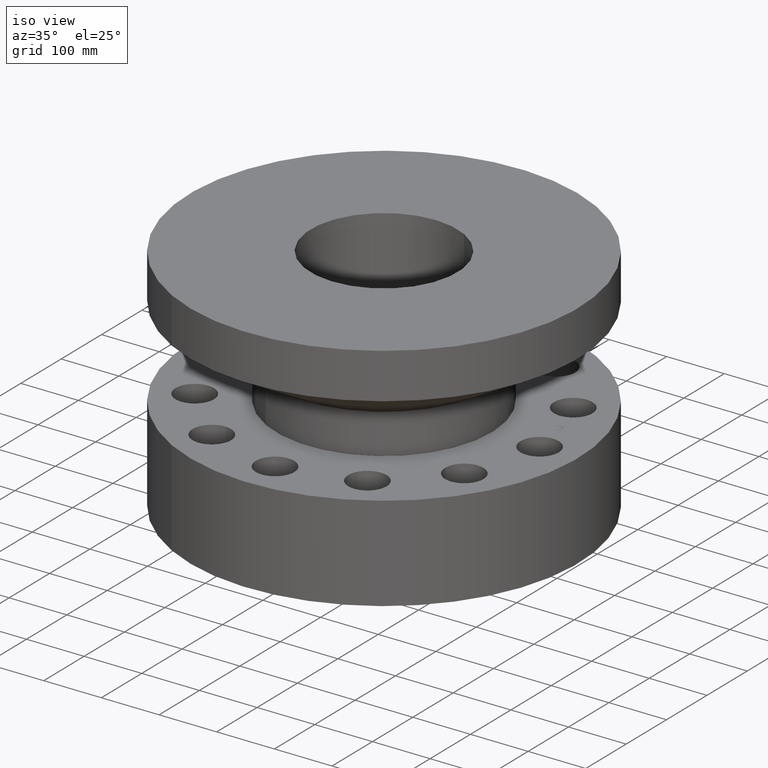
[diagram: clean part render]
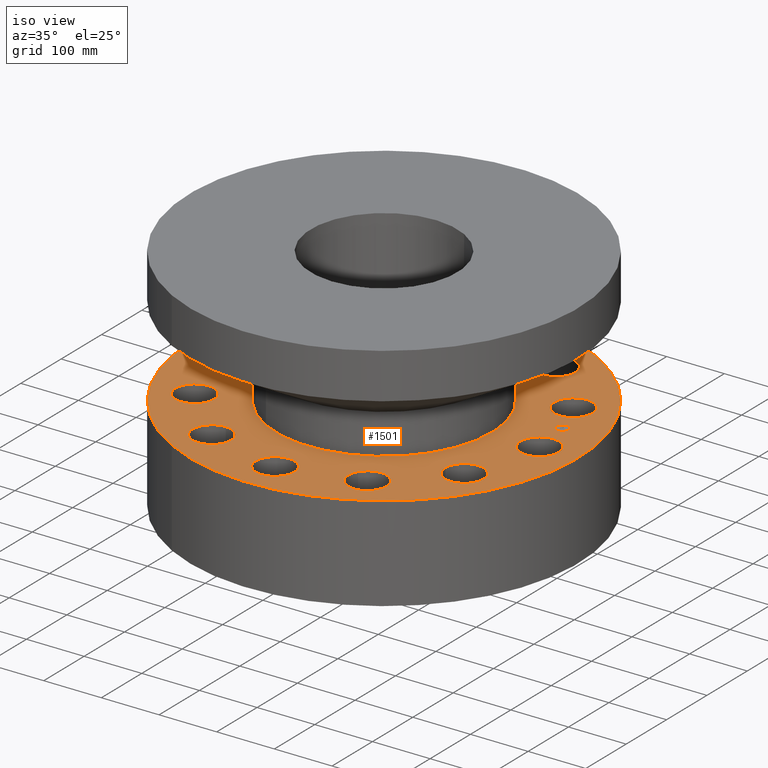
[diagram: same view with one face highlighted and labeled with its STEP entity id]
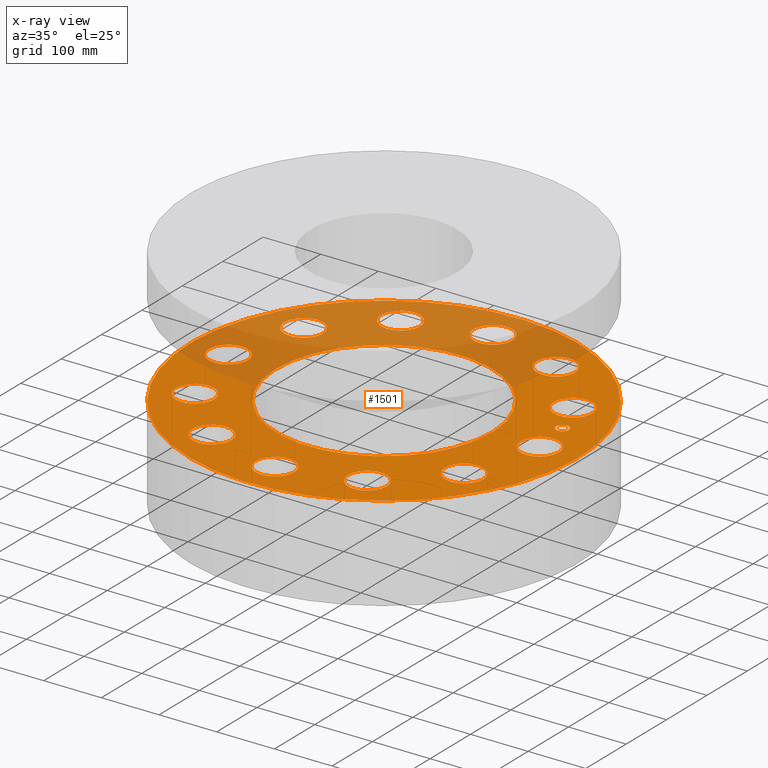
[diagram: x-ray of the same camera — body ghosted, the highlighted face saturated]
A machine part, iso view. The second image highlights one B-rep face of the part: STEP entity #1501.
The next image is the same camera in x-ray: the body ghosted, the highlighted face saturated — about 37% of this face is hidden behind the body in this view.
In plain terms, the highlighted planar face has unit normal (0, 0, -1).
Its self-contained STEP definition (entity closure, byte-faithful):
#65=AXIS2_PLACEMENT_3D('Circle Axis2P3D',#63,#64,$) ;
#338=AXIS2_PLACEMENT_3D('Circle Axis2P3D',#336,#337,$) ;
#357=AXIS2_PLACEMENT_3D('Circle Axis2P3D',#355,#356,$) ;
#374=AXIS2_PLACEMENT_3D('Circle Axis2P3D',#372,#373,$) ;
#409=AXIS2_PLACEMENT_3D('Circle Axis2P3D',#407,#408,$) ;
#939=AXIS2_PLACEMENT_3D('Circle Axis2P3D',#937,#938,$) ;
#970=AXIS2_PLACEMENT_3D('Circle Axis2P3D',#968,#969,$) ;
#982=AXIS2_PLACEMENT_3D('Circle Axis2P3D',#980,#981,$) ;
#1013=AXIS2_PLACEMENT_3D('Circle Axis2P3D',#1011,#1012,$) ;
#1025=AXIS2_PLACEMENT_3D('Circle Axis2P3D',#1023,#1024,$) ;
#1056=AXIS2_PLACEMENT_3D('Circle Axis2P3D',#1054,#1055,$) ;
#1068=AXIS2_PLACEMENT_3D('Circle Axis2P3D',#1066,#1067,$) ;
#1099=AXIS2_PLACEMENT_3D('Circle Axis2P3D',#1097,#1098,$) ;
#1111=AXIS2_PLACEMENT_3D('Circle Axis2P3D',#1109,#1110,$) ;
#1142=AXIS2_PLACEMENT_3D('Circle Axis2P3D',#1140,#1141,$) ;
#1154=AXIS2_PLACEMENT_3D('Circle Axis2P3D',#1152,#1153,$) ;
#1185=AXIS2_PLACEMENT_3D('Circle Axis2P3D',#1183,#1184,$) ;
#1197=AXIS2_PLACEMENT_3D('Circle Axis2P3D',#1195,#1196,$) ;
#1228=AXIS2_PLACEMENT_3D('Circle Axis2P3D',#1226,#1227,$) ;
#1240=AXIS2_PLACEMENT_3D('Circle Axis2P3D',#1238,#1239,$) ;
#1271=AXIS2_PLACEMENT_3D('Circle Axis2P3D',#1269,#1270,$) ;
#1283=AXIS2_PLACEMENT_3D('Circle Axis2P3D',#1281,#1282,$) ;
#1314=AXIS2_PLACEMENT_3D('Circle Axis2P3D',#1312,#1313,$) ;
#1326=AXIS2_PLACEMENT_3D('Circle Axis2P3D',#1324,#1325,$) ;
#1357=AXIS2_PLACEMENT_3D('Circle Axis2P3D',#1355,#1356,$) ;
#1369=AXIS2_PLACEMENT_3D('Circle Axis2P3D',#1367,#1368,$) ;
#1400=AXIS2_PLACEMENT_3D('Circle Axis2P3D',#1398,#1399,$) ;
#1412=AXIS2_PLACEMENT_3D('Circle Axis2P3D',#1410,#1411,$) ;
#1425=AXIS2_PLACEMENT_3D('Plane Axis2P3D',#1422,#1423,#1424) ;
#1485=AXIS2_PLACEMENT_3D('Circle Axis2P3D',#1483,#1484,$) ;
#1494=AXIS2_PLACEMENT_3D('Circle Axis2P3D',#1492,#1493,$) ;
#44=CARTESIAN_POINT('Vertex',(11.7746331561,0.628047455574,6.50000000003)) ;
#60=CARTESIAN_POINT('Vertex',(9.47536684396,-0.628047455574,6.50000000003)) ;
#63=CARTESIAN_POINT('Axis2P3D Location',(10.625,0.,6.50000000003)) ;
#333=CARTESIAN_POINT('Vertex',(-6.35238838653,-11.6279689451,6.50000000003)) ;
#336=CARTESIAN_POINT('Axis2P3D Location',(0.,0.,6.50000000003)) ;
#340=CARTESIAN_POINT('Vertex',(6.35238838653,11.6279689451,6.50000000003)) ;
#355=CARTESIAN_POINT('Axis2P3D Location',(0.,0.,6.50000000003)) ;
#372=CARTESIAN_POINT('Axis2P3D Location',(0.,0.,6.50000000003)) ;
#376=CARTESIAN_POINT('Vertex',(3.52857196414,6.45900765554,6.50000000003)) ;
#378=CARTESIAN_POINT('Vertex',(-3.52857196414,-6.45900765554,6.50000000003)) ;
#407=CARTESIAN_POINT('Axis2P3D Location',(0.,0.,6.50000000003)) ;
#937=CARTESIAN_POINT('Axis2P3D Location',(10.625,0.,6.50000000003)) ;
#958=CARTESIAN_POINT('Vertex',(10.5111551612,-5.34341152675,6.50000000003)) ;
#965=CARTESIAN_POINT('Vertex',(7.89188466926,-5.28158847329,6.50000000003)) ;
#968=CARTESIAN_POINT('Axis2P3D Location',(9.20151991525,-5.31250000002,6.50000000003)) ;
#980=CARTESIAN_POINT('Axis2P3D Location',(9.20151991525,-5.31250000002,6.50000000003)) ;
#1001=CARTESIAN_POINT('Vertex',(6.43122162937,-9.88310770566,6.50000000003)) ;
#1008=CARTESIAN_POINT('Vertex',(4.19377837067,-8.51993212483,6.50000000003)) ;
#1011=CARTESIAN_POINT('Axis2P3D Location',(5.31250000002,-9.20151991525,6.50000000003)) ;
#1023=CARTESIAN_POINT('Axis2P3D Location',(5.31250000002,-9.20151991525,6.50000000003)) ;
#1044=CARTESIAN_POINT('Vertex',(0.628047455574,-11.7746331561,6.50000000003)) ;
#1051=CARTESIAN_POINT('Vertex',(-0.628047455574,-9.47536684396,6.50000000003)) ;
#1054=CARTESIAN_POINT('Axis2P3D Location',(-1.58733626436E-015,-10.625,6.50000000003)) ;
#1066=CARTESIAN_POINT('Axis2P3D Location',(-1.58733626436E-015,-10.625,6.50000000003)) ;
#1087=CARTESIAN_POINT('Vertex',(-5.34341152675,-10.5111551612,6.50000000003)) ;
#1094=CARTESIAN_POINT('Vertex',(-5.28158847329,-7.89188466926,6.50000000003)) ;
#1097=CARTESIAN_POINT('Axis2P3D Location',(-5.31250000002,-9.20151991525,6.50000000003)) ;
#1109=CARTESIAN_POINT('Axis2P3D Location',(-5.31250000002,-9.20151991525,6.50000000003)) ;
#1130=CARTESIAN_POINT('Vertex',(-9.88310770566,-6.43122162937,6.50000000003)) ;
#1137=CARTESIAN_POINT('Vertex',(-8.51993212483,-4.19377837067,6.50000000003)) ;
#1140=CARTESIAN_POINT('Axis2P3D Location',(-9.20151991525,-5.31250000002,6.50000000003)) ;
#1152=CARTESIAN_POINT('Axis2P3D Location',(-9.20151991525,-5.31250000002,6.50000000003)) ;
#1173=CARTESIAN_POINT('Vertex',(-11.7746331561,-0.628047455574,6.50000000003)) ;
#1180=CARTESIAN_POINT('Vertex',(-9.47536684396,0.628047455574,6.50000000003)) ;
#1183=CARTESIAN_POINT('Axis2P3D Location',(-10.625,-1.3011872241E-015,6.50000000003)) ;
#1195=CARTESIAN_POINT('Axis2P3D Location',(-10.625,-1.3011872241E-015,6.50000000003)) ;
#1216=CARTESIAN_POINT('Vertex',(-10.5111551612,5.34341152675,6.50000000003)) ;
#1223=CARTESIAN_POINT('Vertex',(-7.89188466926,5.28158847329,6.50000000003)) ;
#1226=CARTESIAN_POINT('Axis2P3D Location',(-9.20151991525,5.31250000002,6.50000000003)) ;
#1238=CARTESIAN_POINT('Axis2P3D Location',(-9.20151991525,5.31250000002,6.50000000003)) ;
#1259=CARTESIAN_POINT('Vertex',(-6.43122162937,9.88310770566,6.50000000003)) ;
#1266=CARTESIAN_POINT('Vertex',(-4.19377837067,8.51993212483,6.50000000003)) ;
#1269=CARTESIAN_POINT('Axis2P3D Location',(-5.31250000002,9.20151991525,6.50000000003)) ;
#1281=CARTESIAN_POINT('Axis2P3D Location',(-5.31250000002,9.20151991525,6.50000000003)) ;
#1302=CARTESIAN_POINT('Vertex',(-0.628047455574,11.7746331561,6.50000000003)) ;
#1309=CARTESIAN_POINT('Vertex',(0.628047455574,9.47536684396,6.50000000003)) ;
#1312=CARTESIAN_POINT('Axis2P3D Location',(-1.95178083615E-015,10.625,6.50000000003)) ;
#1324=CARTESIAN_POINT('Axis2P3D Location',(-1.95178083615E-015,10.625,6.50000000003)) ;
#1345=CARTESIAN_POINT('Vertex',(5.34341152675,10.5111551612,6.50000000003)) ;
#1352=CARTESIAN_POINT('Vertex',(5.28158847329,7.89188466926,6.50000000003)) ;
#1355=CARTESIAN_POINT('Axis2P3D Location',(5.31250000002,9.20151991525,6.50000000003)) ;
#1367=CARTESIAN_POINT('Axis2P3D Location',(5.31250000002,9.20151991525,6.50000000003)) ;
#1388=CARTESIAN_POINT('Vertex',(9.88310770566,6.43122162937,6.50000000003)) ;
#1395=CARTESIAN_POINT('Vertex',(8.51993212483,4.19377837067,6.50000000003)) ;
#1398=CARTESIAN_POINT('Axis2P3D Location',(9.20151991525,5.31250000002,6.50000000003)) ;
#1410=CARTESIAN_POINT('Axis2P3D Location',(9.20151991525,5.31250000002,6.50000000003)) ;
#1422=CARTESIAN_POINT('Axis2P3D Location',(0.,13.2500000001,6.50000000003)) ;
#1483=CARTESIAN_POINT('Axis2P3D Location',(10.2629619044,2.74995235423,6.50000000003)) ;
#1487=CARTESIAN_POINT('Vertex',(10.3729599974,2.33943388216,6.50000000003)) ;
#1489=CARTESIAN_POINT('Vertex',(10.1529638113,3.16047082629,6.50000000003)) ;
#1492=CARTESIAN_POINT('Axis2P3D Location',(10.2629619044,2.74995235423,6.50000000003)) ;
#64=DIRECTION('Axis2P3D Direction',(0.,-0.,0.0393700787402)) ;
#337=DIRECTION('Axis2P3D Direction',(0.,0.,-0.0393700787402)) ;
#356=DIRECTION('Axis2P3D Direction',(0.,0.,-0.0393700787402)) ;
#373=DIRECTION('Axis2P3D Direction',(0.,0.,-0.0393700787402)) ;
#408=DIRECTION('Axis2P3D Direction',(0.,0.,-0.0393700787402)) ;
#938=DIRECTION('Axis2P3D Direction',(0.,-0.,0.0393700787402)) ;
#969=DIRECTION('Axis2P3D Direction',(-0.,0.,0.0393700787402)) ;
#981=DIRECTION('Axis2P3D Direction',(-0.,0.,0.0393700787402)) ;
#1012=DIRECTION('Axis2P3D Direction',(-0.,0.,0.0393700787402)) ;
#1024=DIRECTION('Axis2P3D Direction',(-0.,0.,0.0393700787402)) ;
#1055=DIRECTION('Axis2P3D Direction',(-0.,0.,0.0393700787402)) ;
#1067=DIRECTION('Axis2P3D Direction',(-0.,0.,0.0393700787402)) ;
#1098=DIRECTION('Axis2P3D Direction',(0.,0.,0.0393700787402)) ;
#1110=DIRECTION('Axis2P3D Direction',(0.,0.,0.0393700787402)) ;
#1141=DIRECTION('Axis2P3D Direction',(0.,0.,0.0393700787402)) ;
#1153=DIRECTION('Axis2P3D Direction',(0.,0.,0.0393700787402)) ;
#1184=DIRECTION('Axis2P3D Direction',(0.,0.,0.0393700787402)) ;
#1196=DIRECTION('Axis2P3D Direction',(0.,0.,0.0393700787402)) ;
#1227=DIRECTION('Axis2P3D Direction',(0.,0.,0.0393700787402)) ;
#1239=DIRECTION('Axis2P3D Direction',(0.,0.,0.0393700787402)) ;
#1270=DIRECTION('Axis2P3D Direction',(0.,0.,0.0393700787402)) ;
#1282=DIRECTION('Axis2P3D Direction',(0.,0.,0.0393700787402)) ;
#1313=DIRECTION('Axis2P3D Direction',(0.,0.,0.0393700787402)) ;
#1325=DIRECTION('Axis2P3D Direction',(0.,0.,0.0393700787402)) ;
#1356=DIRECTION('Axis2P3D Direction',(0.,-0.,0.0393700787402)) ;
#1368=DIRECTION('Axis2P3D Direction',(0.,-0.,0.0393700787402)) ;
#1399=DIRECTION('Axis2P3D Direction',(0.,-0.,0.0393700787402)) ;
#1411=DIRECTION('Axis2P3D Direction',(0.,-0.,0.0393700787402)) ;
#1423=DIRECTION('Axis2P3D Direction',(0.,0.,-0.0393700787402)) ;
#1424=DIRECTION('Axis2P3D XDirection',(0.0393700787402,0.,0.)) ;
#1484=DIRECTION('Axis2P3D Direction',(0.,0.,-0.0393700787402)) ;
#1493=DIRECTION('Axis2P3D Direction',(0.,0.,-0.0393700787402)) ;
#1428=ORIENTED_EDGE('',*,*,#359,.F.) ;
#1429=ORIENTED_EDGE('',*,*,#342,.F.) ;
#1432=ORIENTED_EDGE('',*,*,#67,.T.) ;
#1433=ORIENTED_EDGE('',*,*,#941,.T.) ;
#1436=ORIENTED_EDGE('',*,*,#411,.T.) ;
#1437=ORIENTED_EDGE('',*,*,#380,.T.) ;
#1440=ORIENTED_EDGE('',*,*,#984,.T.) ;
#1441=ORIENTED_EDGE('',*,*,#972,.T.) ;
#1444=ORIENTED_EDGE('',*,*,#1027,.T.) ;
#1445=ORIENTED_EDGE('',*,*,#1015,.T.) ;
#1448=ORIENTED_EDGE('',*,*,#1070,.T.) ;
#1449=ORIENTED_EDGE('',*,*,#1058,.T.) ;
#1452=ORIENTED_EDGE('',*,*,#1113,.T.) ;
#1453=ORIENTED_EDGE('',*,*,#1101,.T.) ;
#1456=ORIENTED_EDGE('',*,*,#1156,.T.) ;
#1457=ORIENTED_EDGE('',*,*,#1144,.T.) ;
#1460=ORIENTED_EDGE('',*,*,#1199,.T.) ;
#1461=ORIENTED_EDGE('',*,*,#1187,.T.) ;
#1464=ORIENTED_EDGE('',*,*,#1242,.T.) ;
#1465=ORIENTED_EDGE('',*,*,#1230,.T.) ;
#1468=ORIENTED_EDGE('',*,*,#1285,.T.) ;
#1469=ORIENTED_EDGE('',*,*,#1273,.T.) ;
#1472=ORIENTED_EDGE('',*,*,#1328,.T.) ;
#1473=ORIENTED_EDGE('',*,*,#1316,.T.) ;
#1476=ORIENTED_EDGE('',*,*,#1371,.T.) ;
#1477=ORIENTED_EDGE('',*,*,#1359,.T.) ;
#1480=ORIENTED_EDGE('',*,*,#1414,.T.) ;
#1481=ORIENTED_EDGE('',*,*,#1402,.T.) ;
#1498=ORIENTED_EDGE('',*,*,#1491,.F.) ;
#1499=ORIENTED_EDGE('',*,*,#1496,.F.) ;
#1434=FACE_BOUND('',#1431,.T.) ;
#1438=FACE_BOUND('',#1435,.T.) ;
#1442=FACE_BOUND('',#1439,.T.) ;
#1446=FACE_BOUND('',#1443,.T.) ;
#1450=FACE_BOUND('',#1447,.T.) ;
#1454=FACE_BOUND('',#1451,.T.) ;
#1458=FACE_BOUND('',#1455,.T.) ;
#1462=FACE_BOUND('',#1459,.T.) ;
#1466=FACE_BOUND('',#1463,.T.) ;
#1470=FACE_BOUND('',#1467,.T.) ;
#1474=FACE_BOUND('',#1471,.T.) ;
#1478=FACE_BOUND('',#1475,.T.) ;
#1482=FACE_BOUND('',#1479,.T.) ;
#1500=FACE_BOUND('',#1497,.T.) ;
#1501=ADVANCED_FACE('PartBody',(#1430,#1434,#1438,#1442,#1446,#1450,#1454,#1458,#1462,#1466,#1470,#1474,#1478,#1482,#1500),#1426,.F.) ;
#66=CIRCLE('generated circle',#65,1.31000000001) ;
#339=CIRCLE('generated circle',#338,13.2500000001) ;
#358=CIRCLE('generated circle',#357,13.2500000001) ;
#375=CIRCLE('generated circle',#374,7.36000000003) ;
#410=CIRCLE('generated circle',#409,7.36000000003) ;
#940=CIRCLE('generated circle',#939,1.31000000001) ;
#971=CIRCLE('generated circle',#970,1.31000000001) ;
#983=CIRCLE('generated circle',#982,1.31000000001) ;
#1014=CIRCLE('generated circle',#1013,1.31000000001) ;
#1026=CIRCLE('generated circle',#1025,1.31000000001) ;
#1057=CIRCLE('generated circle',#1056,1.31000000001) ;
#1069=CIRCLE('generated circle',#1068,1.31000000001) ;
#1100=CIRCLE('generated circle',#1099,1.31000000001) ;
#1112=CIRCLE('generated circle',#1111,1.31000000001) ;
#1143=CIRCLE('generated circle',#1142,1.31000000001) ;
#1155=CIRCLE('generated circle',#1154,1.31000000001) ;
#1186=CIRCLE('generated circle',#1185,1.31000000001) ;
#1198=CIRCLE('generated circle',#1197,1.31000000001) ;
#1229=CIRCLE('generated circle',#1228,1.31000000001) ;
#1241=CIRCLE('generated circle',#1240,1.31000000001) ;
#1272=CIRCLE('generated circle',#1271,1.31000000001) ;
#1284=CIRCLE('generated circle',#1283,1.31000000001) ;
#1315=CIRCLE('generated circle',#1314,1.31000000001) ;
#1327=CIRCLE('generated circle',#1326,1.31000000001) ;
#1358=CIRCLE('generated circle',#1357,1.31000000001) ;
#1370=CIRCLE('generated circle',#1369,1.31000000001) ;
#1401=CIRCLE('generated circle',#1400,1.31000000001) ;
#1413=CIRCLE('generated circle',#1412,1.31000000001) ;
#1486=CIRCLE('generated circle',#1485,0.424999995752) ;
#1495=CIRCLE('generated circle',#1494,0.424999995752) ;
#67=EDGE_CURVE('',#45,#61,#66,.F.) ;
#342=EDGE_CURVE('',#334,#341,#339,.T.) ;
#359=EDGE_CURVE('',#341,#334,#358,.T.) ;
#380=EDGE_CURVE('',#377,#379,#375,.T.) ;
#411=EDGE_CURVE('',#379,#377,#410,.T.) ;
#941=EDGE_CURVE('',#61,#45,#940,.F.) ;
#972=EDGE_CURVE('',#959,#966,#971,.F.) ;
#984=EDGE_CURVE('',#966,#959,#983,.F.) ;
#1015=EDGE_CURVE('',#1002,#1009,#1014,.F.) ;
#1027=EDGE_CURVE('',#1009,#1002,#1026,.F.) ;
#1058=EDGE_CURVE('',#1045,#1052,#1057,.F.) ;
#1070=EDGE_CURVE('',#1052,#1045,#1069,.F.) ;
#1101=EDGE_CURVE('',#1088,#1095,#1100,.F.) ;
#1113=EDGE_CURVE('',#1095,#1088,#1112,.F.) ;
#1144=EDGE_CURVE('',#1131,#1138,#1143,.F.) ;
#1156=EDGE_CURVE('',#1138,#1131,#1155,.F.) ;
#1187=EDGE_CURVE('',#1174,#1181,#1186,.F.) ;
#1199=EDGE_CURVE('',#1181,#1174,#1198,.F.) ;
#1230=EDGE_CURVE('',#1217,#1224,#1229,.F.) ;
#1242=EDGE_CURVE('',#1224,#1217,#1241,.F.) ;
#1273=EDGE_CURVE('',#1260,#1267,#1272,.F.) ;
#1285=EDGE_CURVE('',#1267,#1260,#1284,.F.) ;
#1316=EDGE_CURVE('',#1303,#1310,#1315,.F.) ;
#1328=EDGE_CURVE('',#1310,#1303,#1327,.F.) ;
#1359=EDGE_CURVE('',#1346,#1353,#1358,.F.) ;
#1371=EDGE_CURVE('',#1353,#1346,#1370,.F.) ;
#1402=EDGE_CURVE('',#1389,#1396,#1401,.F.) ;
#1414=EDGE_CURVE('',#1396,#1389,#1413,.F.) ;
#1491=EDGE_CURVE('',#1488,#1490,#1486,.F.) ;
#1496=EDGE_CURVE('',#1490,#1488,#1495,.F.) ;
#1427=EDGE_LOOP('',(#1428,#1429)) ;
#1431=EDGE_LOOP('',(#1432,#1433)) ;
#1435=EDGE_LOOP('',(#1436,#1437)) ;
#1439=EDGE_LOOP('',(#1440,#1441)) ;
#1443=EDGE_LOOP('',(#1444,#1445)) ;
#1447=EDGE_LOOP('',(#1448,#1449)) ;
#1451=EDGE_LOOP('',(#1452,#1453)) ;
#1455=EDGE_LOOP('',(#1456,#1457)) ;
#1459=EDGE_LOOP('',(#1460,#1461)) ;
#1463=EDGE_LOOP('',(#1464,#1465)) ;
#1467=EDGE_LOOP('',(#1468,#1469)) ;
#1471=EDGE_LOOP('',(#1472,#1473)) ;
#1475=EDGE_LOOP('',(#1476,#1477)) ;
#1479=EDGE_LOOP('',(#1480,#1481)) ;
#1497=EDGE_LOOP('',(#1498,#1499)) ;
#1430=FACE_OUTER_BOUND('',#1427,.T.) ;
#1426=PLANE('',#1425) ;
#45=VERTEX_POINT('',#44) ;
#61=VERTEX_POINT('',#60) ;
#334=VERTEX_POINT('',#333) ;
#341=VERTEX_POINT('',#340) ;
#377=VERTEX_POINT('',#376) ;
#379=VERTEX_POINT('',#378) ;
#959=VERTEX_POINT('',#958) ;
#966=VERTEX_POINT('',#965) ;
#1002=VERTEX_POINT('',#1001) ;
#1009=VERTEX_POINT('',#1008) ;
#1045=VERTEX_POINT('',#1044) ;
#1052=VERTEX_POINT('',#1051) ;
#1088=VERTEX_POINT('',#1087) ;
#1095=VERTEX_POINT('',#1094) ;
#1131=VERTEX_POINT('',#1130) ;
#1138=VERTEX_POINT('',#1137) ;
#1174=VERTEX_POINT('',#1173) ;
#1181=VERTEX_POINT('',#1180) ;
#1217=VERTEX_POINT('',#1216) ;
#1224=VERTEX_POINT('',#1223) ;
#1260=VERTEX_POINT('',#1259) ;
#1267=VERTEX_POINT('',#1266) ;
#1303=VERTEX_POINT('',#1302) ;
#1310=VERTEX_POINT('',#1309) ;
#1346=VERTEX_POINT('',#1345) ;
#1353=VERTEX_POINT('',#1352) ;
#1389=VERTEX_POINT('',#1388) ;
#1396=VERTEX_POINT('',#1395) ;
#1488=VERTEX_POINT('',#1487) ;
#1490=VERTEX_POINT('',#1489) ;